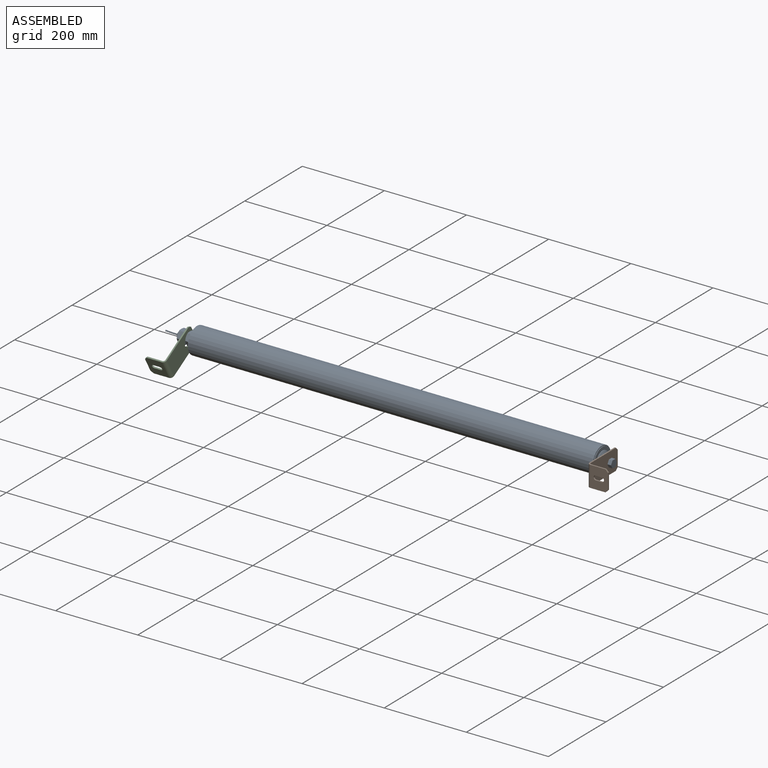
[diagram: assembled view]
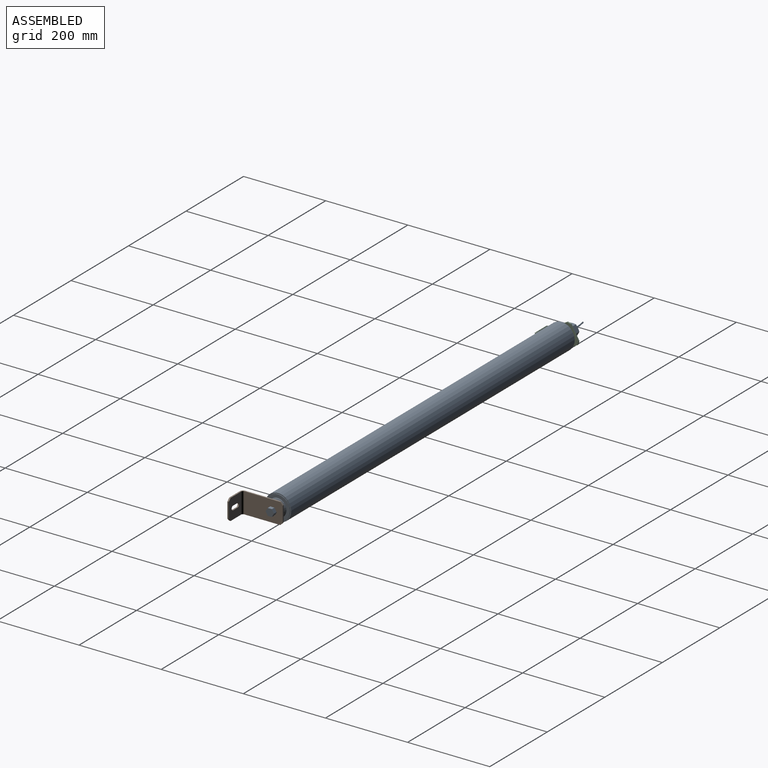
[diagram: assembled view, second angle]
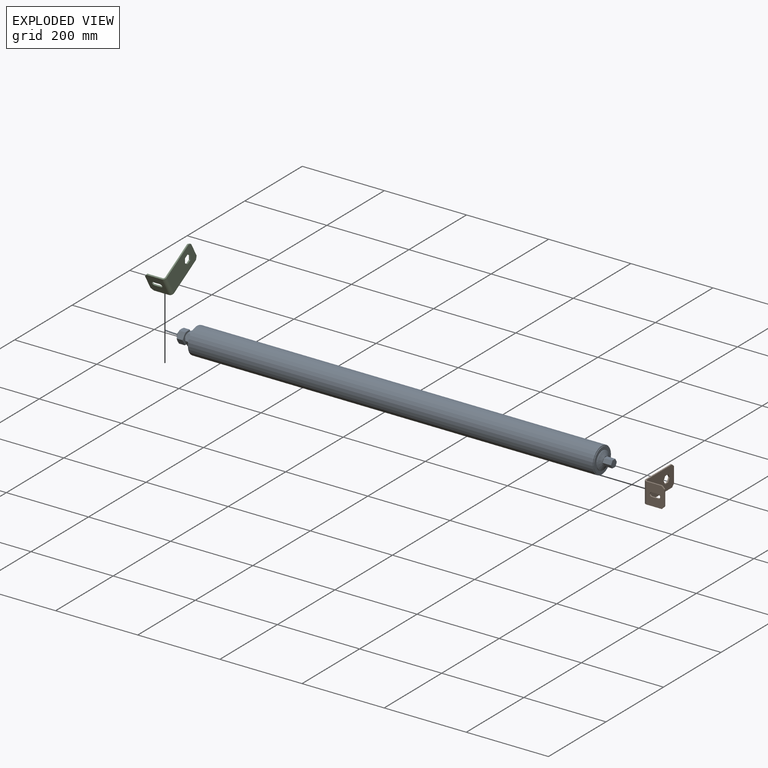
[diagram: exploded view]
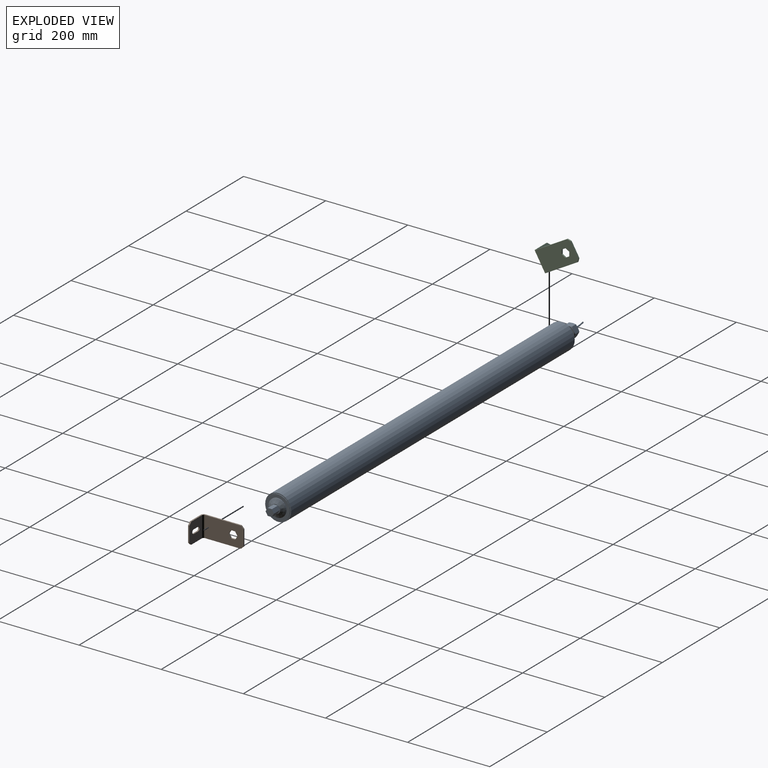
[diagram: exploded view, second angle]
ASSEMBLY  parts=3 mates=2
PART A: 221 faces, bbox 1092.3x64.9x64.9 mm
  f0: cylinder r=9.53mm len=2.14mm, axis (1,0,0), area 0.3mm2, adj f90,f91,f197,f207
  f1: cone r=21.46mm half-angle=65.2deg, axis (1,0,0), area 1105.2mm2, adj f2,f20
  f2: plane 59.06x59.06mm, normal (-1,0,0), area 812.1mm2, adj f1,f12
  f3: plane 21.59x21.59mm, normal (1,0,0), area 102mm2, adj f9,f13,f14,f15,f16,f17,f18
  f4: plane 63.5x63.5mm, normal (-1,0,0), area 427.9mm2, adj f11,f12
  f5: cylinder r=29.53mm len=59.06mm, axis (-1,0,0), area 282.7mm2, adj f6,f10
  f6: plane 59.06x59.06mm, normal (1,0,0), area 1291.9mm2, adj f5,f7
  f7: cylinder r=21.46mm len=42.93mm, axis (-1,0,0), area 205.5mm2, adj f6,f8
  f8: cone r=10.79mm half-angle=65.2deg, axis (-1,0,0), area 1190.6mm2, adj f7,f9
  f9: cylinder r=10.79mm len=21.59mm, axis (-1,0,0), area 51.7mm2, adj f3,f8
  f10: plane 63.5x63.5mm, normal (1,0,0), area 427.9mm2, adj f5,f11
  f11: cylinder r=31.75mm len=985.84mm, axis (1,0,0), area 196665.8mm2, adj f4,f10
  f12: cylinder r=29.53mm len=59.06mm, axis (-1,0,0), area 282.7mm2, adj f2,f4
  f13: plane 20.64x8.73mm, normal (0,0.87,0.5), area 208.1mm2, adj f3,f14,f18,f19
  f14: plane 20.64x10.08mm, normal (0,0,1), area 208.1mm2, adj f3,f13,f15,f19
  f15: plane 20.64x8.73mm, normal (0,-0.87,0.5), area 208.1mm2, adj f3,f14,f16,f19
  f16: plane 20.64x8.73mm, normal (0,-0.87,-0.5), area 208.1mm2, adj f3,f15,f17,f19
  f17: plane 20.64x10.08mm, normal (0,0,-1), area 208.1mm2, adj f3,f16,f18,f19
  f18: plane 20.64x8.73mm, normal (0,0.87,-0.5), area 208.1mm2, adj f3,f13,f17,f19
  f19: plane 20.16x17.46mm, normal (1,0,0), area 264.1mm2, adj f13,f14,f15,f16,f17,f18
  f20: cylinder r=17.14mm len=34.29mm, axis (1,0,0), area 286.4mm2, adj f1,f21
  f21: plane 34.29x34.29mm, normal (-1,0,0), area 282.2mm2, adj f20,f39,f40,f41,f42,f43,f44
  f22: cylinder r=9.53mm len=19.05mm, axis (1,0,0), area 599.5mm2, adj f25,f32,f163,f164,f166,f167,f168,f169
  f23: cylinder r=9.53mm len=2.94mm, axis (1,0,0), area 5.1mm2, adj f24,f165,f197,f198
  f24: cylinder r=9.53mm len=19.05mm, axis (1,0,0), area 102.3mm2, adj f23,f25,f197,f198
  f25: cylinder r=9.53mm len=19.05mm, axis (1,0,0), area 102.3mm2, adj f22,f24,f197,f198
  f26: plane 17.24x15.64mm, normal (0,0.87,-0.5), area 247.5mm2, adj f27,f31,f33,f38,f42,f43
  f27: plane 17.87x17.24mm, normal (0,0,-1), area 247.5mm2, adj f26,f28,f37,f38,f41,f42
  f28: plane 17.24x15.64mm, normal (0,-0.87,-0.5), area 247.5mm2, adj f27,f29,f36,f37,f40,f41
  f29: plane 17.24x15.64mm, normal (0,-0.87,0.5), area 247.5mm2, adj f28,f30,f35,f36,f39,f40
  f30: plane 17.87x17.24mm, normal (0,0,1), area 247.5mm2, adj f29,f31,f34,f35,f39,f44
  f31: plane 17.24x15.64mm, normal (0,0.87,0.5), area 247.5mm2, adj f26,f30,f33,f34,f43,f44
  f32: plane 28.58x28.58mm, normal (-1,0,0), area 356.3mm2, adj f22,f33,f34,f35,f36,f37,f38,f199
  f33: cone r=14.29mm half-angle=60deg, axis (1,0,0), area 20.1mm2, adj f26,f31,f32
  f34: cone r=14.29mm half-angle=60deg, axis (1,0,0), area 20.1mm2, adj f30,f31,f32
  f35: cone r=14.29mm half-angle=60deg, axis (1,0,0), area 20.1mm2, adj f29,f30,f32
  f36: cone r=14.29mm half-angle=60deg, axis (1,0,0), area 20.1mm2, adj f28,f29,f32
  f37: cone r=14.29mm half-angle=60deg, axis (1,0,0), area 20.1mm2, adj f27,f28,f32
  f38: cone r=14.29mm half-angle=60deg, axis (1,0,0), area 20.1mm2, adj f26,f27,f32
  f39: cone r=14.29mm half-angle=60deg, axis (-1,0,0), area 20.1mm2, adj f21,f29,f30
  f40: cone r=14.29mm half-angle=60deg, axis (-1,0,0), area 20.1mm2, adj f21,f28,f29
  f41: cone r=14.29mm half-angle=60deg, axis (-1,0,0), area 20.1mm2, adj f21,f27,f28
  f42: cone r=14.29mm half-angle=60deg, axis (-1,0,0), area 20.1mm2, adj f21,f26,f27
  f43: cone r=14.29mm half-angle=60deg, axis (-1,0,0), area 20.1mm2, adj f21,f26,f31
  f44: cone r=14.29mm half-angle=60deg, axis (-1,0,0), area 20.1mm2, adj f21,f30,f31
  f45: plane 2.98x2.83mm, normal (-0.99,0.17,0), area 5.7mm2, adj f46,f47,f48
  f46: torus R=153.13mm, axis (0,0,-1), area 89.8mm2, adj f45,f47,f48,f49
  f47: torus R=152.4mm, axis (0,0,-1), area 89.2mm2, adj f45,f46,f48,f50
  f48: torus R=151.67mm, axis (0,0,-1), area 88.7mm2, adj f45,f46,f47,f51
  f49: cylinder r=0.79mm len=31.75mm, axis (1,0,0), area 111mm2, adj f46,f50,f51,f52
  f50: cylinder r=0.79mm len=31.75mm, axis (1,0,0), area 111mm2, adj f47,f49,f51,f52
  f51: cylinder r=0.79mm len=31.75mm, axis (1,0,0), area 111mm2, adj f48,f49,f50,f52
  f52: plane 6.36x6.36mm, normal (-1,0,0), area 26mm2, adj f49,f50,f51,f53
  f53: cylinder r=3.18mm len=25.4mm, axis (-1,0,0), area 507.3mm2, adj f52,f54
  f54: plane 16.12x16.12mm, normal (-1,0,0), area 172.3mm2, adj f53,f63
  f55: cone r=8.06mm half-angle=45deg, axis (1,0,0), area 1.9mm2, adj f58,f59,f159,f198
  f56: plane 2.56x1.57mm, normal (-1,0,0), area 0.2mm2, adj f57,f198
  f57: plane 2.6x1.6mm, normal (0,0.87,0.5), area 0.1mm2, adj f56,f198
  f58: cylinder r=9.53mm len=1.85mm, axis (1,0,0), area 0.2mm2, adj f55,f59,f159,f197
  f59: plane 6.73x4.06mm, normal (0,-0.87,-0.5), area 5.7mm2, adj f55,f58,f63,f197,f198
  f60: plane 5.41x3.13mm, normal (0,-0.87,0.5), area 3.5mm2, adj f63,f197
  f61: plane 4.87x0.54mm, normal (0,0,1), area 1.7mm2, adj f63,f197
  f62: plane 2.93x1.85mm, normal (0,0.87,0.5), area 0.4mm2, adj f63,f197
  f63: cone r=8.06mm half-angle=45deg, axis (1,0,0), area 51.6mm2, adj f54,f59,f60,f61,f62,f160,f197,f198
  f64: plane 7.61x1.19mm, normal (0,0,-1), area 6.5mm2, adj f65,f162,f197,f198
  f65: cylinder r=9.53mm len=1.85mm, axis (1,0,0), area 0.5mm2, adj f64,f66,f197,f198
  f66: plane 6.59x3.81mm, normal (0,-0.87,-0.5), area 6.5mm2, adj f65,f67,f197,f198
  f67: cylinder r=9.53mm len=2.14mm, axis (1,0,0), area 0.5mm2, adj f66,f68,f197,f198
  f68: plane 6.59x3.81mm, normal (0,-0.87,0.5), area 6.5mm2, adj f67,f69,f197,f198
  f69: cylinder r=9.53mm len=1.85mm, axis (1,0,0), area 0.5mm2, adj f68,f70,f197,f198
  f70: plane 7.61x1.19mm, normal (0,0,1), area 6.5mm2, adj f69,f71,f197,f198
  f71: cylinder r=9.53mm len=1.85mm, axis (1,0,0), area 0.5mm2, adj f70,f72,f197,f198
  f72: plane 6.59x3.81mm, normal (0,0.87,0.5), area 6.5mm2, adj f71,f73,f197,f198
  f73: cylinder r=9.53mm len=2.14mm, axis (1,0,0), area 0.5mm2, adj f72,f74,f197,f198
  f74: plane 6.59x3.81mm, normal (0,0.87,-0.5), area 6.5mm2, adj f73,f75,f197,f198
  f75: cylinder r=9.53mm len=1.85mm, axis (1,0,0), area 0.5mm2, adj f74,f76,f197,f198
  f76: plane 7.61x1.19mm, normal (0,0,-1), area 6.5mm2, adj f75,f77,f197,f198
  f77: cylinder r=9.53mm len=1.85mm, axis (1,0,0), area 0.5mm2, adj f76,f78,f197,f198
  f78: plane 6.59x3.81mm, normal (0,-0.87,-0.5), area 6.5mm2, adj f77,f79,f197,f198
  f79: cylinder r=9.53mm len=2.14mm, axis (1,0,0), area 0.5mm2, adj f78,f80,f197,f198
  f80: plane 6.59x3.81mm, normal (0,-0.87,0.5), area 6.5mm2, adj f79,f81,f197,f198
  f81: cylinder r=9.53mm len=1.85mm, axis (1,0,0), area 0.5mm2, adj f80,f82,f197,f198
  f82: plane 7.61x1.19mm, normal (0,0,1), area 6.5mm2, adj f81,f83,f197,f198
  f83: cylinder r=9.53mm len=1.85mm, axis (1,0,0), area 0.5mm2, adj f82,f84,f197,f198
  f84: plane 6.59x3.81mm, normal (0,0.87,0.5), area 6.5mm2, adj f83,f85,f197,f198
  f85: cylinder r=9.53mm len=2.14mm, axis (1,0,0), area 0.5mm2, adj f84,f86,f197,f198
  f86: plane 6.59x3.81mm, normal (0,0.87,-0.5), area 6.5mm2, adj f85,f87,f197,f198
  f87: cylinder r=9.53mm len=1.85mm, axis (1,0,0), area 0.5mm2, adj f86,f88,f197,f198
  f88: plane 7.61x1.19mm, normal (0,0,-1), area 6.5mm2, adj f87,f89,f197,f198
  f89: cylinder r=9.53mm len=1.85mm, axis (1,0,0), area 0.5mm2, adj f88,f90,f197,f198
  f90: plane 6.59x3.81mm, normal (0,-0.87,-0.5), area 6.5mm2, adj f0,f89,f197,f198,f200
  f91: plane 6.59x3.81mm, normal (0,-0.87,0.5), area 6.5mm2, adj f0,f197,f198,f200
  f92: plane 7.61x1.19mm, normal (0,0,1), area 6.5mm2, adj f197,f198,f200
  f93: plane 6.59x3.81mm, normal (0,0.87,0.5), area 6.5mm2, adj f197,f198,f200
  f94: plane 6.59x3.81mm, normal (0,0.87,-0.5), area 6.5mm2, adj f197,f198,f200
  f95: plane 7.61x1.19mm, normal (0,0,-1), area 6.5mm2, adj f197,f198,f200
  f96: plane 6.59x3.81mm, normal (0,-0.87,-0.5), area 6.5mm2, adj f197,f198,f200
  f97: plane 6.59x3.81mm, normal (0,-0.87,0.5), area 6.5mm2, adj f197,f198,f200
  f98: plane 7.61x1.19mm, normal (0,0,1), area 6.5mm2, adj f197,f198,f200
  f99: plane 6.59x3.81mm, normal (0,0.87,0.5), area 6.5mm2, adj f197,f198,f200
  f100: plane 6.59x3.81mm, normal (0,0.87,-0.5), area 6.5mm2, adj f197,f198,f200
  f101: plane 7.61x1.19mm, normal (0,0,-1), area 6.5mm2, adj f197,f198,f200
  f102: plane 6.59x3.81mm, normal (0,-0.87,-0.5), area 6.5mm2, adj f197,f198,f200
  f103: plane 6.59x3.81mm, normal (0,-0.87,0.5), area 6.5mm2, adj f197,f198,f200
  f104: plane 7.61x1.19mm, normal (0,0,1), area 6.5mm2, adj f197,f198,f200
  f105: plane 6.59x3.81mm, normal (0,0.87,0.5), area 6.5mm2, adj f197,f198,f200
  f106: plane 6.59x3.81mm, normal (0,0.87,-0.5), area 6.5mm2, adj f197,f198,f200
  f107: plane 7.61x1.19mm, normal (0,0,-1), area 6.5mm2, adj f197,f198,f200
  f108: plane 6.59x3.81mm, normal (0,-0.87,-0.5), area 6.5mm2, adj f197,f198,f200
  f109: plane 6.59x3.81mm, normal (0,-0.87,0.5), area 6.5mm2, adj f197,f198,f200
  f110: plane 7.61x1.19mm, normal (0,0,1), area 6.5mm2, adj f197,f198,f200
  f111: plane 6.59x3.81mm, normal (0,0.87,0.5), area 6.5mm2, adj f197,f198,f200
  f112: plane 6.59x3.81mm, normal (0,0.87,-0.5), area 6.5mm2, adj f197,f198,f200
  f113: plane 7.61x1.19mm, normal (0,0,-1), area 6.5mm2, adj f197,f198,f200
  f114: plane 6.59x3.81mm, normal (0,-0.87,-0.5), area 6.5mm2, adj f197,f198,f200
  f115: plane 6.59x3.81mm, normal (0,-0.87,0.5), area 6.5mm2, adj f197,f198,f200
  f116: plane 7.61x1.19mm, normal (0,0,1), area 6.5mm2, adj f197,f198,f200
  f117: plane 6.59x3.81mm, normal (0,0.87,0.5), area 6.5mm2, adj f197,f198,f200
  f118: plane 6.59x3.81mm, normal (0,0.87,-0.5), area 6.5mm2, adj f197,f198,f200
  f119: plane 7.61x1.19mm, normal (0,0,-1), area 6.5mm2, adj f197,f198,f200
  f120: plane 6.59x3.81mm, normal (0,-0.87,-0.5), area 6.5mm2, adj f197,f198,f200
  f121: plane 6.59x3.81mm, normal (0,-0.87,0.5), area 6.5mm2, adj f197,f198,f200
  f122: plane 7.61x1.19mm, normal (0,0,1), area 6.5mm2, adj f197,f198,f200
  f123: plane 6.59x3.81mm, normal (0,0.87,0.5), area 6.5mm2, adj f197,f198,f200
  f124: plane 6.59x3.81mm, normal (0,0.87,-0.5), area 6.5mm2, adj f197,f198,f200
  f125: plane 7.61x1.19mm, normal (0,0,-1), area 6.5mm2, adj f197,f198,f200
  f126: plane 6.59x3.81mm, normal (0,-0.87,-0.5), area 6.5mm2, adj f197,f198,f200
  f127: plane 6.59x3.81mm, normal (0,-0.87,0.5), area 6.5mm2, adj f197,f198,f200
  f128: plane 7.61x1.19mm, normal (0,0,1), area 6.5mm2, adj f197,f198,f200
  f129: plane 6.59x3.81mm, normal (0,0.87,0.5), area 6.5mm2, adj f197,f198,f200
  f130: plane 6.59x3.81mm, normal (0,0.87,-0.5), area 6.5mm2, adj f197,f198,f200
  f131: plane 7.61x1.19mm, normal (0,0,-1), area 6.5mm2, adj f197,f198,f200
  f132: plane 6.59x3.81mm, normal (0,-0.87,-0.5), area 6.5mm2, adj f197,f198,f200
  f133: plane 6.59x3.81mm, normal (0,-0.87,0.5), area 6.5mm2, adj f197,f198,f200
  f134: plane 7.61x1.19mm, normal (0,0,1), area 6.5mm2, adj f197,f198,f200
  f135: plane 6.59x3.81mm, normal (0,0.87,0.5), area 6.5mm2, adj f197,f198,f200
  f136: plane 6.59x3.81mm, normal (0,0.87,-0.5), area 6.5mm2, adj f197,f198,f200
  f137: plane 7.61x1.19mm, normal (0,0,-1), area 6.5mm2, adj f197,f198,f200
  f138: plane 6.59x3.81mm, normal (0,-0.87,-0.5), area 6.5mm2, adj f197,f198,f200
  f139: plane 6.59x3.81mm, normal (0,-0.87,0.5), area 6.5mm2, adj f140,f197,f198,f200
  f140: cylinder r=9.53mm len=1.85mm, axis (1,0,0), area 0.4mm2, adj f139,f141,f198,f208
  f141: plane 7.61x1.19mm, normal (0,0,1), area 6.5mm2, adj f140,f142,f197,f198,f200
  f142: cylinder r=9.53mm len=1.85mm, axis (1,0,0), area 0.5mm2, adj f141,f143,f197,f198
  f143: plane 6.59x3.81mm, normal (0,0.87,0.5), area 6.5mm2, adj f142,f144,f197,f198
  f144: cylinder r=9.53mm len=2.14mm, axis (1,0,0), area 0.5mm2, adj f143,f145,f197,f198
  f145: plane 6.59x3.81mm, normal (0,0.87,-0.5), area 6.5mm2, adj f144,f146,f197,f198
  f146: cylinder r=9.53mm len=1.85mm, axis (1,0,0), area 0.5mm2, adj f145,f147,f197,f198
  f147: plane 7.61x1.19mm, normal (0,0,-1), area 6.5mm2, adj f146,f148,f197,f198
  f148: cylinder r=9.53mm len=1.85mm, axis (1,0,0), area 0.5mm2, adj f147,f149,f197,f198
  f149: plane 6.59x3.81mm, normal (0,-0.87,-0.5), area 6.5mm2, adj f148,f150,f197,f198
  f150: cylinder r=9.53mm len=2.14mm, axis (1,0,0), area 0.5mm2, adj f149,f151,f197,f198
  f151: plane 6.59x3.81mm, normal (0,-0.87,0.5), area 6.5mm2, adj f150,f152,f197,f198
  f152: cylinder r=9.53mm len=1.85mm, axis (1,0,0), area 0.5mm2, adj f151,f153,f197,f198
  f153: plane 7.61x1.19mm, normal (0,0,1), area 6.5mm2, adj f152,f154,f197,f198
  f154: cylinder r=9.53mm len=1.85mm, axis (1,0,0), area 0.5mm2, adj f153,f155,f197,f198
  f155: plane 6.59x3.81mm, normal (0,0.87,0.5), area 6.5mm2, adj f154,f156,f197,f198
  f156: cylinder r=9.53mm len=2.14mm, axis (1,0,0), area 0.5mm2, adj f155,f157,f197,f198
  f157: plane 6.59x3.81mm, normal (0,0.87,-0.5), area 6.5mm2, adj f156,f158,f197,f198
  f158: cylinder r=9.53mm len=1.85mm, axis (1,0,0), area 0.5mm2, adj f157,f159,f197,f198
  f159: plane 7.63x1.2mm, normal (0,0,-1), area 6.4mm2, adj f55,f58,f158,f197,f198
  f160: bspline ~40.1x17.36mm, area 256.1mm2, adj f63,f165,f197,f198
  f161: plane 3.65x2.12mm, normal (-1,0,0), area 0.7mm2, adj f168,f197
  f162: cylinder r=9.53mm len=1.85mm, axis (1,0,0), area 0.5mm2, adj f64,f196,f197,f198
  f163: plane 5.83x3.37mm, normal (0,0.87,-0.5), area 1.8mm2, adj f22,f164,f198
  f164: plane 5.85x3.39mm, normal (-1,0,0), area 3.1mm2, adj f22,f163,f198
  f165: plane 1.71x1.21mm, normal (0,-0.95,-0.31), area 1.2mm2, adj f23,f160,f197,f198
  f166: plane 7.62x0.72mm, normal (0,0,-1), area 4.1mm2, adj f22,f167,f197,f198
  f167: plane 7.15x0.84mm, normal (-1,0,0), area 3.7mm2, adj f22,f166,f197
  f168: plane 6.76x3.97mm, normal (0,-0.87,-0.5), area 6.1mm2, adj f22,f161,f197,f198
  f169: plane 6.59x3.81mm, normal (0,-0.87,0.5), area 6.5mm2, adj f22,f197,f198
  f170: plane 7.61x1.19mm, normal (0,0,1), area 6.5mm2, adj f22,f197,f198
  f171: plane 6.59x3.81mm, normal (0,0.87,0.5), area 6.5mm2, adj f22,f197,f198
  f172: plane 6.59x3.81mm, normal (0,0.87,-0.5), area 6.5mm2, adj f22,f197,f198
  f173: plane 7.61x1.19mm, normal (0,0,-1), area 6.5mm2, adj f22,f197,f198
  f174: plane 6.59x3.81mm, normal (0,-0.87,-0.5), area 6.5mm2, adj f22,f197,f198
  f175: plane 6.59x3.81mm, normal (0,-0.87,0.5), area 6.5mm2, adj f22,f197,f198
  f176: plane 7.61x1.19mm, normal (0,0,1), area 6.5mm2, adj f22,f197,f198
  f177: plane 6.59x3.81mm, normal (0,0.87,0.5), area 6.5mm2, adj f22,f197,f198
  f178: plane 6.59x3.81mm, normal (0,0.87,-0.5), area 6.5mm2, adj f22,f197,f198
  f179: plane 7.61x1.19mm, normal (0,0,-1), area 6.5mm2, adj f22,f197,f198
  f180: plane 6.59x3.81mm, normal (0,-0.87,-0.5), area 6.5mm2, adj f22,f197,f198
  f181: plane 6.59x3.81mm, normal (0,-0.87,0.5), area 6.5mm2, adj f22,f197,f198
  f182: plane 7.61x1.19mm, normal (0,0,1), area 6.5mm2, adj f22,f197,f198
  f183: plane 6.59x3.81mm, normal (0,0.87,0.5), area 6.5mm2, adj f22,f197,f198
  f184: plane 6.59x3.81mm, normal (0,0.87,-0.5), area 6.5mm2, adj f22,f197,f198
  f185: plane 7.61x1.19mm, normal (0,0,-1), area 6.5mm2, adj f22,f197,f198
  f186: plane 6.59x3.81mm, normal (0,-0.87,-0.5), area 6.5mm2, adj f22,f197,f198
  f187: plane 6.59x3.81mm, normal (0,-0.87,0.5), area 6.5mm2, adj f22,f197,f198
  f188: plane 7.61x1.19mm, normal (0,0,1), area 6.5mm2, adj f22,f197,f198
  f189: plane 6.59x3.81mm, normal (0,0.87,0.5), area 6.5mm2, adj f22,f197,f198
  f190: plane 6.59x3.81mm, normal (0,0.87,-0.5), area 6.5mm2, adj f22,f197,f198
  f191: plane 7.61x1.19mm, normal (0,0,-1), area 6.5mm2, adj f22,f197,f198
  f192: plane 6.59x3.81mm, normal (0,-0.87,-0.5), area 6.5mm2, adj f22,f197,f198
  f193: plane 6.59x3.81mm, normal (0,-0.87,0.5), area 6.5mm2, adj f22,f197,f198
  f194: plane 7.61x1.19mm, normal (0,0,1), area 6.5mm2, adj f22,f197,f198
  f195: plane 6.59x3.81mm, normal (0,0.87,0.5), area 6.5mm2, adj f22,f197,f198
  f196: plane 6.59x3.81mm, normal (0,0.87,-0.5), area 6.5mm2, adj f22,f162,f197,f198,f199
  f197: bspline ~40.2x20.03mm, area 1123.2mm2, adj f0,f22,f23,f24,f25,f58,f59,f60
  f198: bspline ~40.59x20.03mm, area 1166.5mm2, adj f22,f23,f24,f25,f55,f56,f57,f59
  f199: cylinder r=9.53mm len=1.07mm, axis (1,0,0), area 0mm2, adj f32,f196,f198
  f200: cylinder r=9.53mm len=19.05mm, axis (1,0,0), area 924.6mm2, adj f90,f91,f92,f93,f94,f95,f96,f97
  f201: plane 17.24x15.64mm, normal (0,0.87,-0.5), area 247.5mm2, adj f202,f206,f209,f214,f218,f219
  f202: plane 17.87x17.24mm, normal (0,0,-1), area 247.5mm2, adj f201,f203,f213,f214,f217,f218
  f203: plane 17.24x15.64mm, normal (0,-0.87,-0.5), area 247.5mm2, adj f202,f204,f212,f213,f216,f217
  f204: plane 17.24x15.64mm, normal (0,-0.87,0.5), area 247.5mm2, adj f203,f205,f211,f212,f215,f216
  f205: plane 17.87x17.24mm, normal (0,0,1), area 247.5mm2, adj f204,f206,f210,f211,f215,f220
  f206: plane 17.24x15.64mm, normal (0,0.87,0.5), area 247.5mm2, adj f201,f205,f209,f210,f219,f220
  f207: plane 28.58x28.58mm, normal (1,0,0), area 356.3mm2, adj f0,f200,f215,f216,f217,f218,f219,f220
  f208: plane 28.58x28.58mm, normal (-1,0,0), area 356.3mm2, adj f140,f200,f209,f210,f211,f212,f213,f214
  f209: cone r=14.29mm half-angle=60deg, axis (1,0,0), area 20.1mm2, adj f201,f206,f208
  f210: cone r=14.29mm half-angle=60deg, axis (1,0,0), area 20.1mm2, adj f205,f206,f208
  f211: cone r=14.29mm half-angle=60deg, axis (1,0,0), area 20.1mm2, adj f204,f205,f208
  f212: cone r=14.29mm half-angle=60deg, axis (1,0,0), area 20.1mm2, adj f203,f204,f208
  f213: cone r=14.29mm half-angle=60deg, axis (1,0,0), area 20.1mm2, adj f202,f203,f208
  f214: cone r=14.29mm half-angle=60deg, axis (1,0,0), area 20.1mm2, adj f201,f202,f208
  f215: cone r=14.29mm half-angle=60deg, axis (-1,0,0), area 20.1mm2, adj f204,f205,f207
  f216: cone r=14.29mm half-angle=60deg, axis (-1,0,0), area 20.1mm2, adj f203,f204,f207
  f217: cone r=14.29mm half-angle=60deg, axis (-1,0,0), area 20.1mm2, adj f202,f203,f207
  f218: cone r=14.29mm half-angle=60deg, axis (-1,0,0), area 20.1mm2, adj f201,f202,f207
  f219: cone r=14.29mm half-angle=60deg, axis (-1,0,0), area 20.1mm2, adj f201,f206,f207
  f220: cone r=14.29mm half-angle=60deg, axis (-1,0,0), area 20.1mm2, adj f205,f206,f207
PART B: 24 faces, bbox 50.8x101.6x50.8 mm
  f0: plane 50.8x43.05mm, normal (0,1,0), area 1907.5mm2, adj f1,f2,f3,f4,f5,f6,f7,f8
  f1: cylinder r=5.16mm len=10.32mm, axis (0,-1,0), area 54.3mm2, adj f0,f2,f4,f9
  f2: plane 15.08x3.35mm, normal (0,0,-1), area 50.6mm2, adj f0,f1,f3,f9
  f3: cylinder r=5.16mm len=10.32mm, axis (0,-1,0), area 54.3mm2, adj f0,f2,f4,f9
  f4: plane 15.08x3.35mm, normal (0,0,1), area 50.6mm2, adj f0,f1,f3,f9
  f5: plane 6.35x6.35mm, normal (0.71,0,-0.71), area 30.1mm2, adj f0,f6,f9,f19
  f6: plane 38.1x3.35mm, normal (1,0,0), area 127.7mm2, adj f0,f5,f7,f9
  f7: plane 6.35x6.35mm, normal (0.71,0,0.71), area 30.1mm2, adj f0,f6,f9,f21
  f8: cylinder r=4.39mm len=50.8mm, axis (0,0,1), area 350.6mm2, adj f0,f10,f19,f21
  f9: plane 50.8x43.05mm, normal (0,-1,0), area 1907.5mm2, adj f1,f2,f3,f4,f5,f6,f7,f19
  f10: plane 93.85x50.8mm, normal (1,0,0), area 4438.8mm2, adj f8,f11,f12,f13,f14,f15,f16,f17
  f11: plane 9.13x5.27mm, normal (0,0.87,0.5), area 35.3mm2, adj f10,f12,f16,f23
  f12: plane 10.54x3.35mm, normal (0,0,1), area 35.3mm2, adj f10,f11,f13,f23
  f13: plane 9.13x5.27mm, normal (0,-0.87,0.5), area 35.3mm2, adj f10,f12,f14,f23
  f14: plane 9.13x5.27mm, normal (0,-0.87,-0.5), area 35.3mm2, adj f10,f13,f15,f23
  f15: plane 10.54x3.35mm, normal (0,0,-1), area 35.3mm2, adj f10,f14,f16,f23
  f16: plane 9.13x5.27mm, normal (0,0.87,-0.5), area 35.3mm2, adj f10,f11,f15,f23
  f17: plane 38.1x3.35mm, normal (0,1,0), area 127.7mm2, adj f10,f18,f22,f23
  f18: plane 6.35x6.35mm, normal (0,0.71,-0.71), area 30.1mm2, adj f10,f17,f19,f23
  f19: plane 95.25x44.45mm, normal (0,0,-1), area 448.4mm2, adj f0,f5,f8,f9,f10,f18,f20,f23
  f20: cylinder r=7.75mm len=50.8mm, axis (0,0,1), area 618.2mm2, adj f9,f19,f21,f23
  f21: plane 95.25x44.45mm, normal (0,0,1), area 448.4mm2, adj f0,f7,f8,f9,f10,f20,f22,f23
  f22: plane 6.35x6.35mm, normal (0,0.71,0.71), area 30.1mm2, adj f10,f17,f21,f23
  f23: plane 93.85x50.8mm, normal (-1,0,0), area 4438.8mm2, adj f11,f12,f13,f14,f15,f16,f17,f18
PART C: same geometry as B
PLACE A rot(axis=(1,0,0),120deg) t=(96.64,57.52,-92.49)mm
PLACE B t=(606.93,83.27,-92.69)mm
PLACE C rot(axis=(0,0.97,0.26),180deg) t=(-415.95,74.96,-87.7)mm
MATE fastened C.f10 <-> A.f22  axis (-1,0,0) through (-419.3,57.52,-92.49)mm
MATE fastened A.f13 <-> B.f16  axis (0,-0.87,0.5) through (608.61,49.96,-88.13)mm
